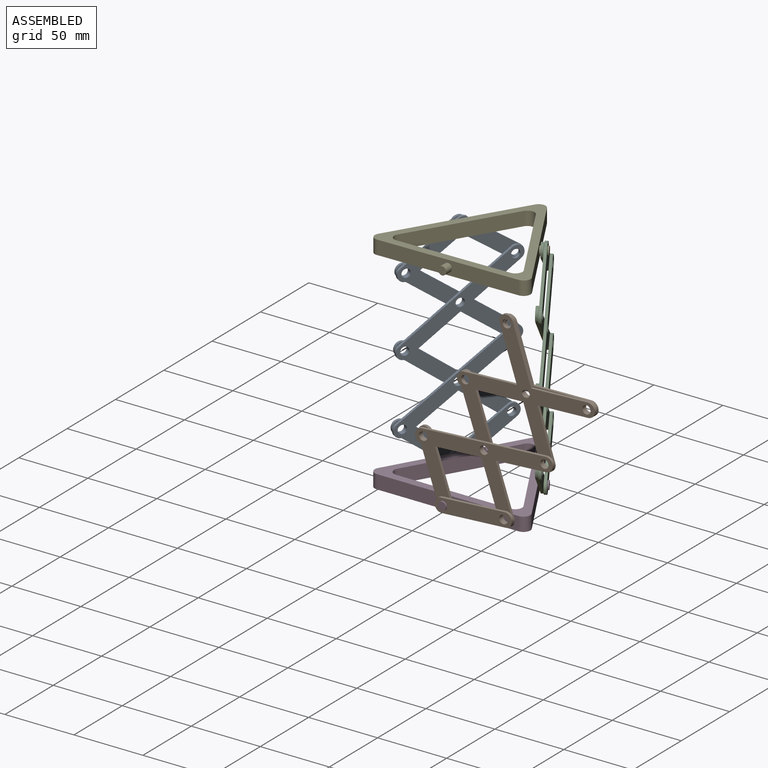
[diagram: assembled view]
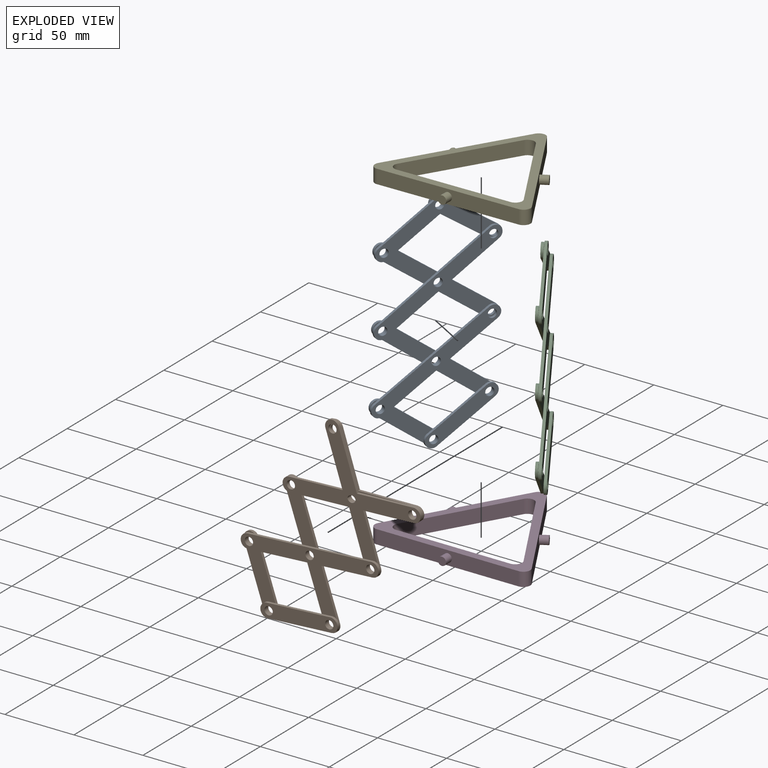
[diagram: exploded view]
GUIDED TOUR — MATED ASSEMBLY WITH SUBASSEMBLIES (Onshape document b6781e57c7d92bd61f52bf06, AutoMate assembly b6781e57c7d92bd61f52bf06_af8572f9969f21d5b0e457aa_2a93b60660b95c885320334c_default)

This assembly has 26 component occurrences arranged in 5 top-level units: 2 individual components plus 3 subassemblies (S0, S1, S2). The tour has two levels: first the top level, where each subassembly is treated as one rigid unit; then each subassembly is toured internally in its own section (nesting deeper than one subassembly level is flattened into its subassembly's section).

Components are labeled P0..P25 across the whole record; subassembly units are labeled S0..S2. A mate is a constraint between two units; its type names the relative motion it leaves free:
  REVOLUTE — leaves rotation about the listed axis free (a hinge).
Axis/direction vectors are unit vectors and 'through' points are millimeter coordinates, both in the assembly's world frame.

TOP-LEVEL MATES (between units; each subassembly's internal mates are listed in its own section)
  1. REVOLUTE "Revolute 4": P8 <-> S0, axis (0.866, -0.500, 0.000) through (-32.60, 18.82, 5.00) mm
  2. REVOLUTE "Revolute 3": P21 <-> S2, axis (-0.866, -0.500, 0.000) through (32.02, 19.82, 157.89) mm
  3. REVOLUTE "Revolute 1": P8 <-> S1, axis (0.000, 1.000, 0.000) through (0.00, -37.64, 5.00) mm
  4. REVOLUTE "Revolute 2": P8 <-> S2, axis (-0.866, -0.500, 0.000) through (32.60, 18.82, 5.00) mm

TOP-LEVEL ASSEMBLY ORDER
  1. S2 — the base component [order verified]
  2. S0 [order verified]
  3. P8 [order verified]
  4. S1 [order verified]
  5. P21 [order verified]
(S1 verified with a relaxed clearance tolerance: the source model stores slight part interference there.)
Order-tag legend:
  [order verified] — this step's position reverses a verified removal order: the component was checked to insert without passing through the ones already placed.

Of the 26 component occurrences, 24 carry the full construction recipe — the FeatureScript program that regenerates the part's solid from scratch; the rest are supplied as boundary geometry only. Each toured unit is shown spotlighted twice — assembled, then exploded with a leader line back to its socket (green = recipe-attached component, orange = geometry-only, blue = subassembly unit; the rest desaturated gray).
NOTE — this tour is split across 3 documents so each fits a 32k-token context. This is document 1: the component sections continue in the remaining 2 documents, each repeating the header above.
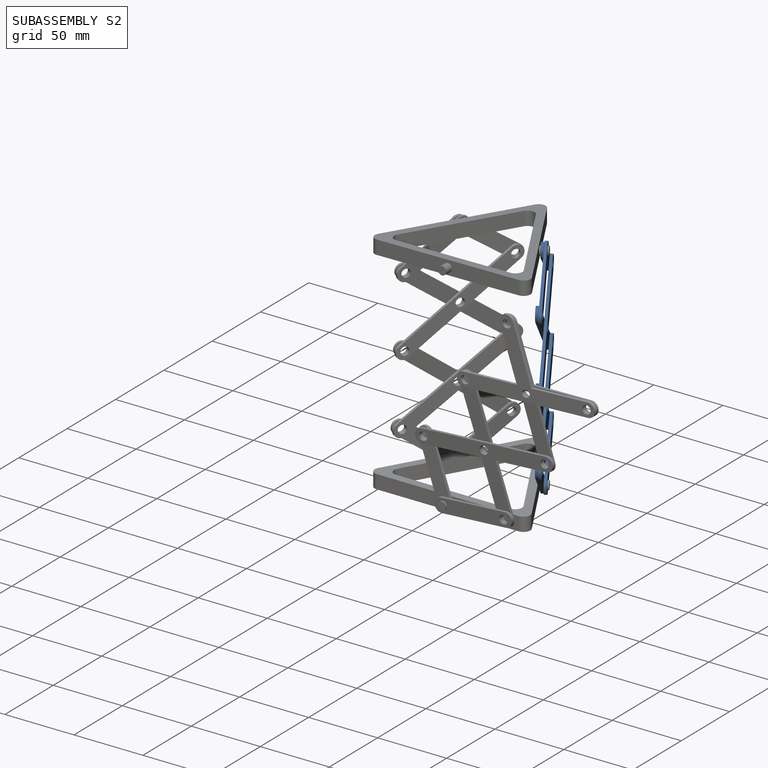
[diagram: subassembly S2 — assembled]
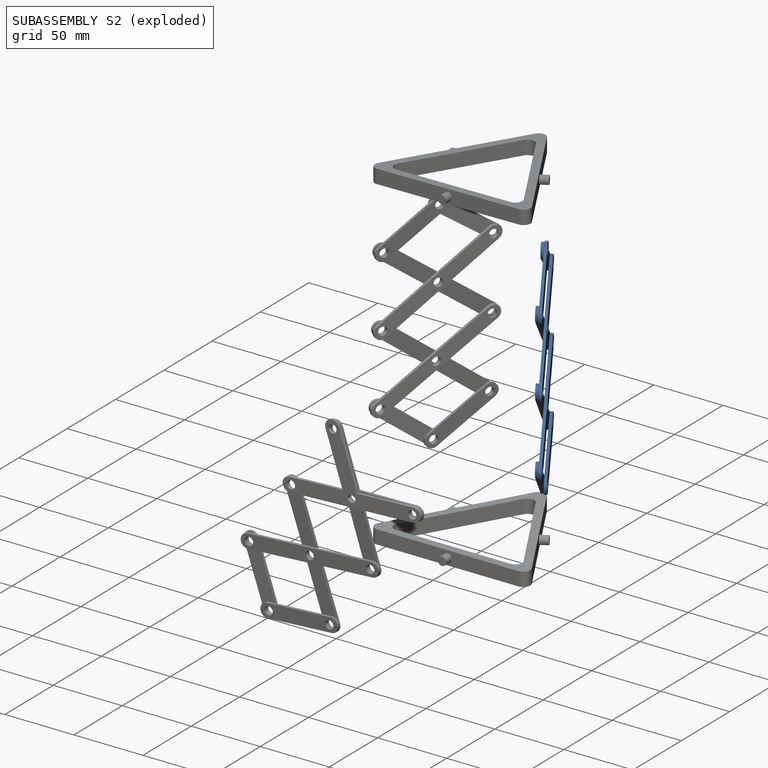
[diagram: subassembly S2 — exploded]
SUBASSEMBLY S2 — 8 components (P2, P6, P14, P17, P18, P20, P23, P25), of which 8 recipe-attached; toured below.
Held by: REVOLUTE mate "Revolute 3" to P21; REVOLUTE mate "Revolute 2" to P8.
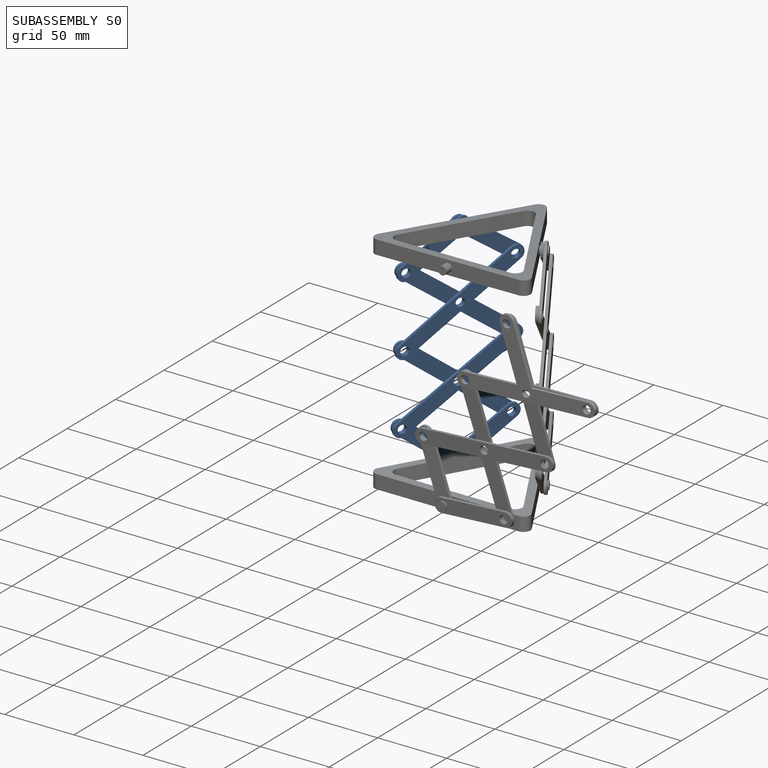
[diagram: subassembly S0 — assembled]
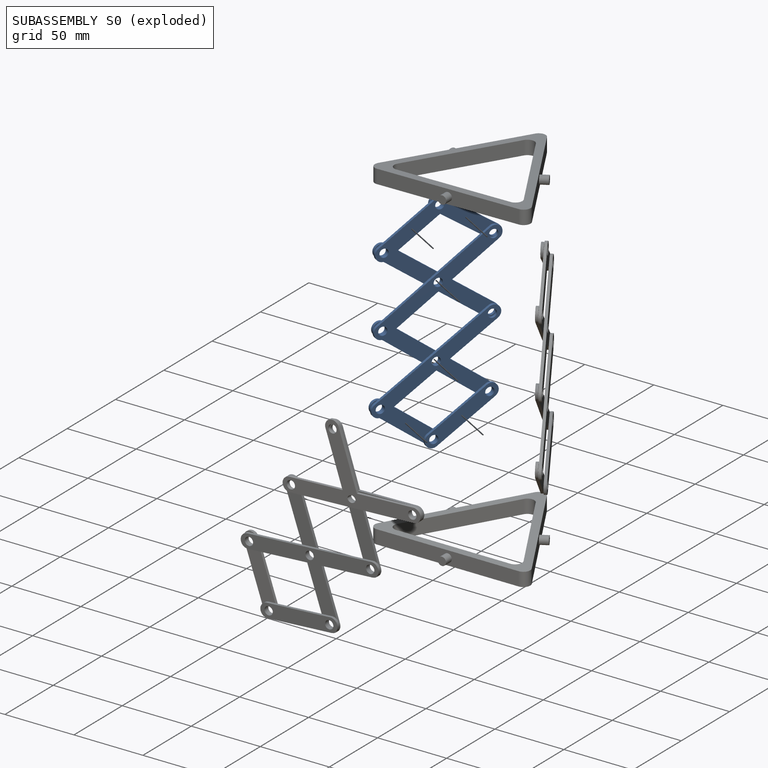
[diagram: subassembly S0 — exploded]
SUBASSEMBLY S0 — 8 components (P0, P7, P10, P12, P13, P15, P19, P24), of which 8 recipe-attached; toured below.
Held by: REVOLUTE mate "Revolute 4" to P8.
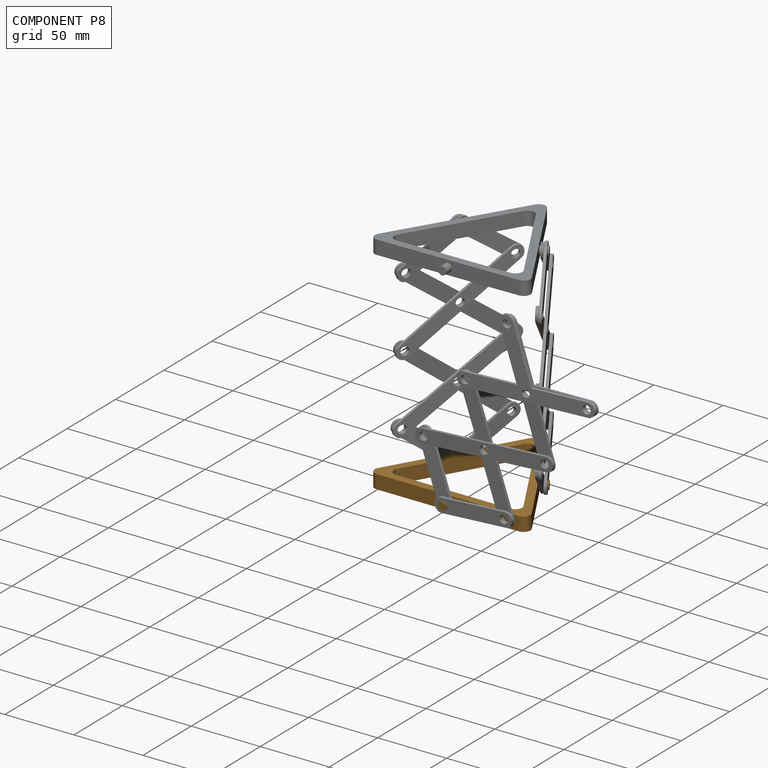
[diagram: component P8 — assembled]
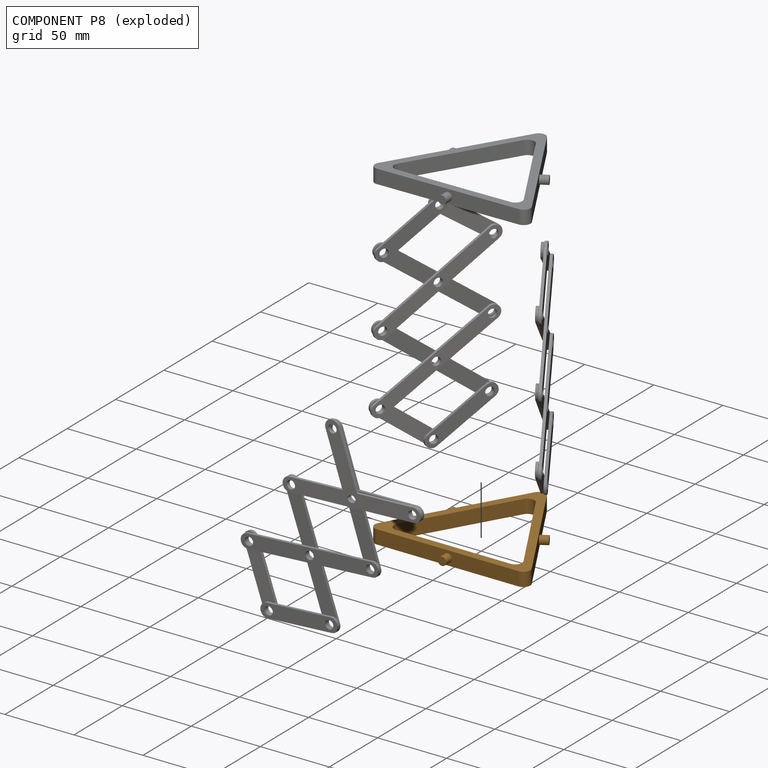
[diagram: component P8 — exploded]
COMPONENT P8 — geometry summary (no construction recipe available for this part):
  bounding box: 112.7 x 104.9 x 10.0 mm
  B-rep topology: 1 solid, 20 faces, 90 edges
  volume: 19561 mm^3 (17% of its bounding box)
  symmetry: 2-fold rotationally symmetric about the y axis; mirror-symmetric across its x mid-plane, z mid-plane
Held by: REVOLUTE mate "Revolute 4" to P0; REVOLUTE mate "Revolute 1" to P1; REVOLUTE mate "Revolute 2" to P2.
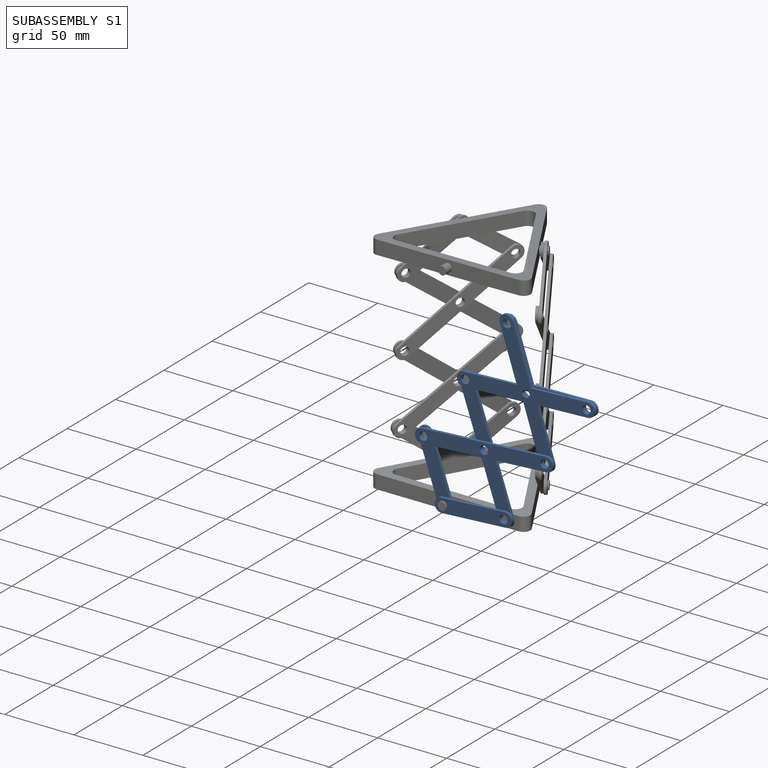
[diagram: subassembly S1 — assembled]
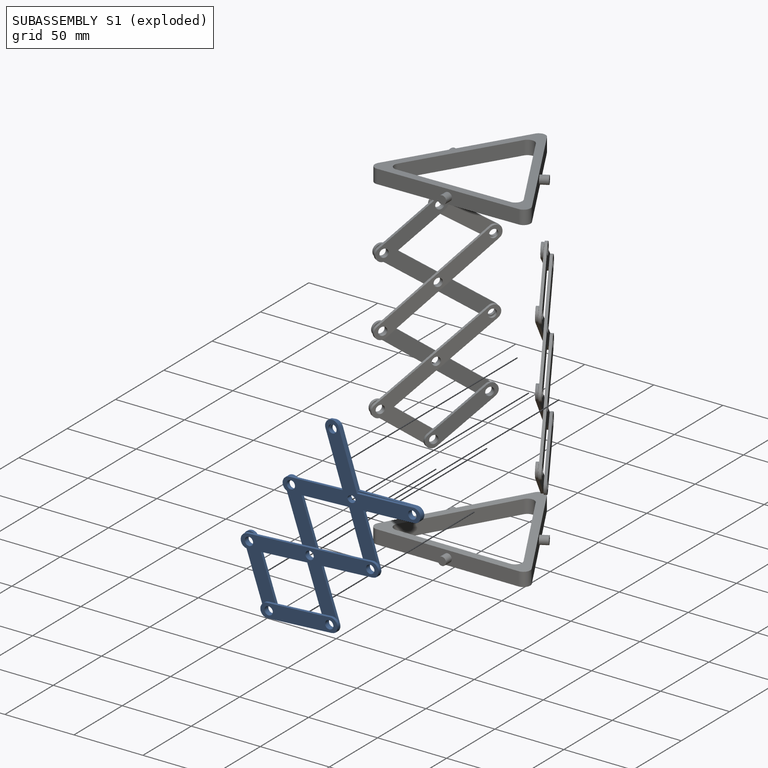
[diagram: subassembly S1 — exploded]
SUBASSEMBLY S1 — 8 components (P1, P3, P4, P5, P9, P11, P16, P22), of which 8 recipe-attached; toured below.
Held by: REVOLUTE mate "Revolute 1" to P8.
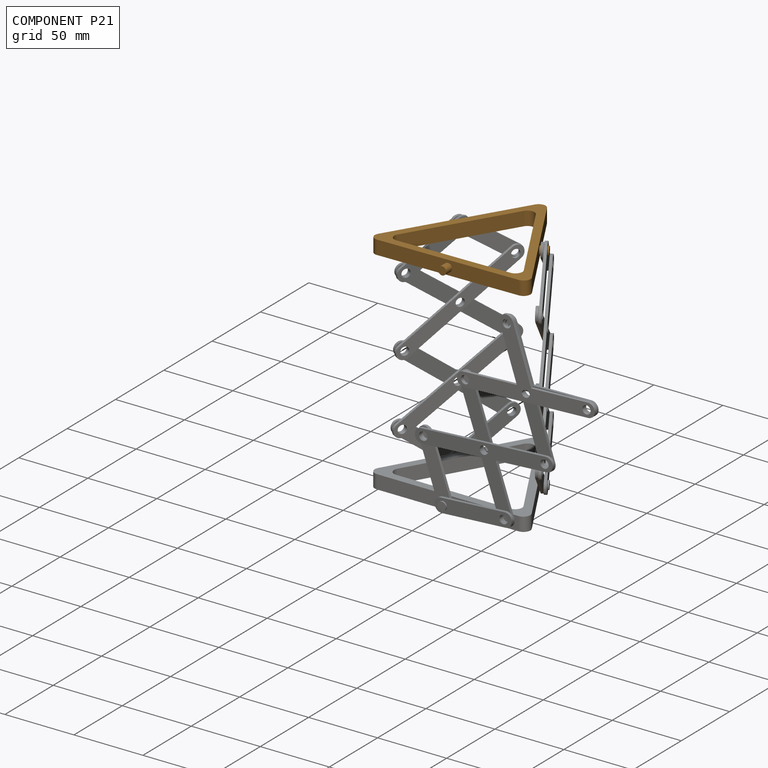
[diagram: component P21 — assembled]
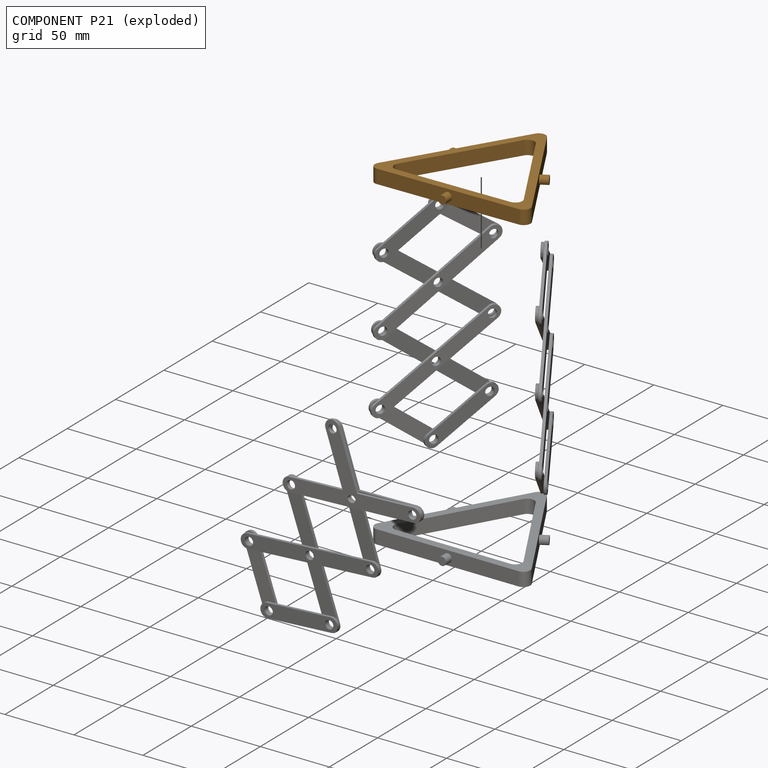
[diagram: component P21 — exploded]
COMPONENT P21 — geometry summary (no construction recipe available for this part):
  bounding box: 112.7 x 104.9 x 10.0 mm
  B-rep topology: 1 solid, 20 faces, 90 edges
  volume: 19561 mm^3 (17% of its bounding box)
  symmetry: 2-fold rotationally symmetric about the y axis; mirror-symmetric across its x mid-plane, z mid-plane
Held by: REVOLUTE mate "Revolute 3" to P2.
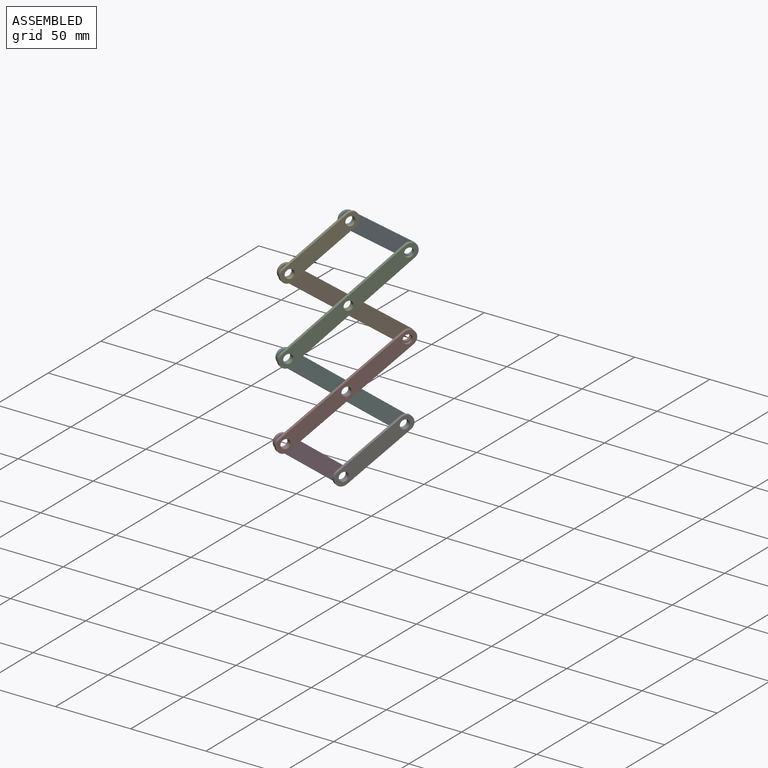
[diagram: subassembly S0 — assembled view]
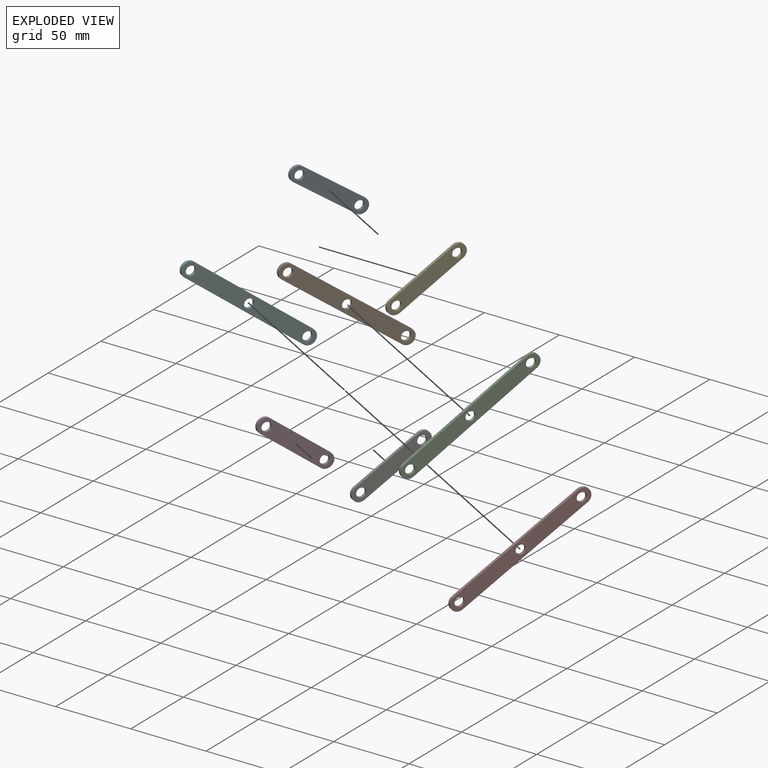
[diagram: subassembly S0 — exploded view]
SUBASSEMBLY S0 TOUR — 8 components, shown here in isolation at its own camera.

INTERNAL MATES
  1. REVOLUTE "Revolute 1": P24 <-> P15, axis (-0.866, 0.500, 0.000) through (-31.77, 20.25, 55.87) mm
  2. REVOLUTE "Revolute 3": P10 <-> P15, axis (-0.866, 0.500, 0.000) through (-49.30, -10.10, 82.47) mm
  3. REVOLUTE "Revolute 8": P13 <-> P7, axis (-0.866, 0.500, 0.000) through (-48.87, -9.37, 133.35) mm
  4. REVOLUTE "Revolute 10": P13 <-> P0, axis (0.866, -0.500, 0.000) through (-30.62, 22.25, 157.90) mm
  5. REVOLUTE "Revolute 5": P19 <-> P15, axis (-0.866, 0.500, 0.000) through (-14.25, 50.61, 29.27) mm
  6. REVOLUTE "Revolute 9": P10 <-> P0, axis (-0.866, 0.500, 0.000) through (-12.57, 53.51, 132.73) mm
  7. REVOLUTE "Revolute 7": P24 <-> P12, axis (-0.866, 0.500, 0.000) through (-50.12, -11.53, 31.60) mm
  8. REVOLUTE "Revolute 6": P19 <-> P12, axis (-0.866, 0.500, 0.000) through (-32.60, 18.82, 5.00) mm
  9. REVOLUTE "Revolute 4": P10 <-> P7, axis (-0.866, 0.500, 0.000) through (-31.14, 21.35, 107.32) mm
  10. REVOLUTE "Revolute 2": P24 <-> P7, axis (-0.866, 0.500, 0.000) through (-13.00, 52.76, 80.69) mm
  11. REVOLUTE "Revolute 1": P24 <-> P15, axis (-0.866, 0.500, 0.000) through (-31.77, 20.25, 55.87) mm
  12. REVOLUTE "Revolute 10": P13 <-> P0, axis (0.866, -0.500, 0.000) through (-30.62, 22.25, 157.90) mm
  13. REVOLUTE "Revolute 4": P10 <-> P7, axis (-0.866, 0.500, 0.000) through (-31.14, 21.35, 107.32) mm
  14. REVOLUTE "Revolute 5": P19 <-> P15, axis (-0.866, 0.500, 0.000) through (-14.25, 50.61, 29.27) mm
  15. REVOLUTE "Revolute 6": P19 <-> P12, axis (-0.866, 0.500, 0.000) through (-32.60, 18.82, 5.00) mm
  16. REVOLUTE "Revolute 2": P24 <-> P7, axis (-0.866, 0.500, 0.000) through (-13.00, 52.76, 80.69) mm
  17. REVOLUTE "Revolute 3": P10 <-> P15, axis (-0.866, 0.500, 0.000) through (-49.30, -10.10, 82.47) mm
  18. REVOLUTE "Revolute 9": P10 <-> P0, axis (-0.866, 0.500, 0.000) through (-12.57, 53.51, 132.73) mm
  19. REVOLUTE "Revolute 8": P13 <-> P7, axis (-0.866, 0.500, 0.000) through (-48.87, -9.37, 133.35) mm
  20. REVOLUTE "Revolute 7": P24 <-> P12, axis (-0.866, 0.500, 0.000) through (-50.12, -11.53, 31.60) mm

ASSEMBLY ORDER (within the subassembly)
  1. P7 — the base component [order verified]
  2. P0 [order verified]
  3. P12 [order verified]
  4. P15 [order verified]
  5. P19 [order verified]
  6. P13 [order verified]
  7. P10 [order verified]
  8. P24 [order verified]
Order-tag legend:
  [order verified] — this step's position reverses a verified removal order: the component was checked to insert without passing through the ones already placed.
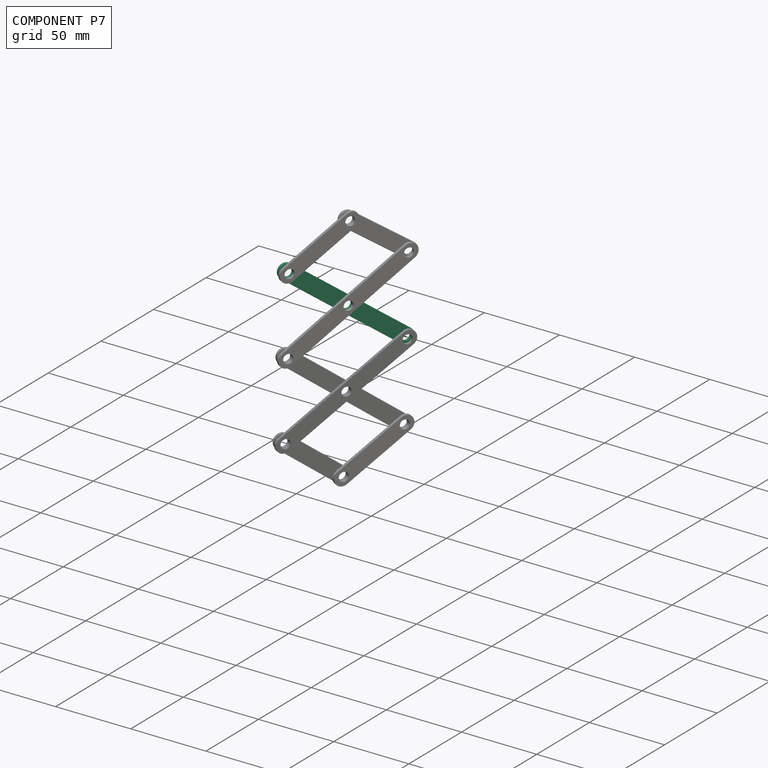
[diagram: component P7 — assembled]
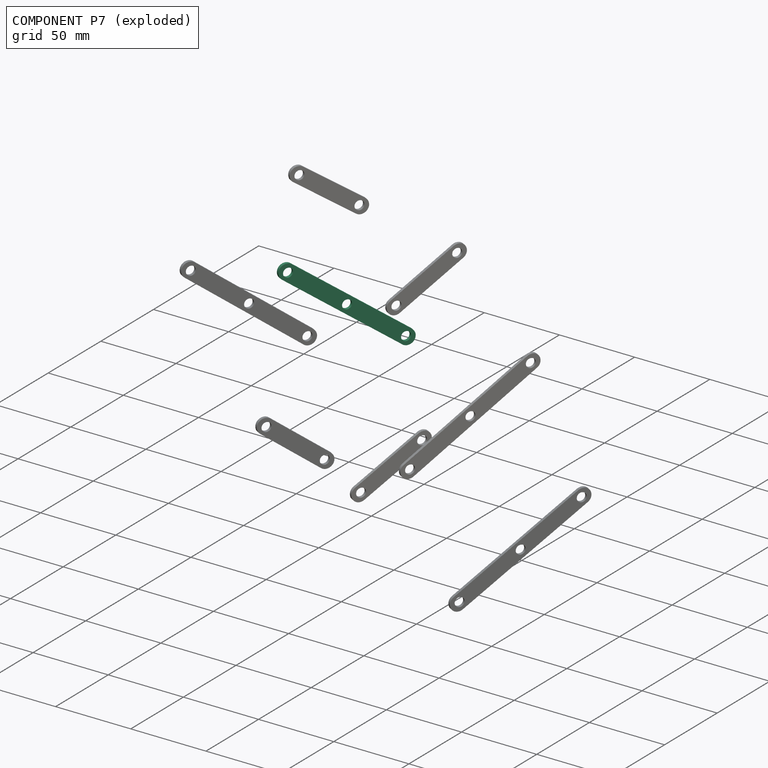
[diagram: component P7 — exploded]
COMPONENT P7 — recipe-attached (CADFS 00656249, mesh-verified: the recipe's output STEP matches this component's geometry to below the mesh-comparison resolution (tessellation chordal tolerance ~0.151 mm)).
Held by: REVOLUTE mate "Revolute 8" to P13; REVOLUTE mate "Revolute 4" to P10; REVOLUTE mate "Revolute 2" to P24; REVOLUTE mate "Revolute 4" to P10; REVOLUTE mate "Revolute 2" to P24; REVOLUTE mate "Revolute 8" to P13.
Construction recipe (FeatureScript — the CAD program that rebuilds this solid; sketch coordinates are in the units given by the * unit suffixes, e.g. mm):

FeatureScript 1511;
import(path : "onshape/std/geometry.fs", version : "1511.0");
import(path : "onshape/std/common.fs", version : "1511.0");
const mm = millimeter;
const VERTEX = EntityType.VERTEX;
const EDGE = EntityType.EDGE;
const FACE = EntityType.FACE;
const BODY = EntityType.BODY;
function v(x, y){return vector(x, y);}
function OD(order){return orderDisambiguation(order);}
function OSD(set){return originalSetDisambiguation(set);}
function TD(topology){return topologyDisambiguation(topology);}
function TDD(query){return trueDependencyDisambiguation(query);}
function sQuery(a, b, c) {return sketchEntityQuery(a, b, c);}

annotation { "Feature Type Name" : "Feature", "Feature Type Description" : "" }
export const myFeature = defineFeature(function(context is Context, id is Id, definition is map)
    precondition{}
    {
        {
            var Q0;
            Q0=qCreatedBy(makeId("Front.planeOp"),FACE);
            var sketch = newSketch(context, id + "F0", { "sketchPlane" : qUnion([Q0])});
            skLineSegment(sketch, "E0.bottom", {"start": v(-50, 5) * mm, "end": v(50, 5) * mm});
            skLineSegment(sketch, "E0.top", {"start": v(-50, -5) * mm, "end": v(50, -5) * mm});
            skLineSegment(sketch, "E0.left", {"start": v(-50, 5) * mm, "end": v(-50, -5) * mm});
            skLineSegment(sketch, "E0.right", {"start": v(50, 5) * mm, "end": v(50, -5) * mm});
            skCircle(sketch, "E1", {"center": v(0, 0) * mm, "radius": 3 * mm});
            skCircle(sketch, "E2", {"center": v(-44, 0) * mm, "radius": 3 * mm});
            skPoint(sketch, "E2.centerSnap0", {"position": v(-50, 0) * mm});
            skCircle(sketch, "E3", {"center": v(44, 0) * mm, "radius": 3 * mm});
            skSolve(sketch);
        }
        {
            var Q0;
            Q0 = qSketchRegion(id + "F0", true);
            extrude(context, id + "F1", {"entities" : qUnion([Q0]), "depth" : 2 * mm, "offsetDistance" : 25 * mm});
        }
        {
            var Q0;
            Q0=makeQuery(id+"F1.opExtrude","SWEPT_EDGE",EDGE,{"disambiguationData":[OSD([sQuery(id+"F0.wireOp",EDGE,"E0.bottom"),sQuery(id+"F0.wireOp",EDGE,"E0.left")])]});
            var Q1;
            Q1=makeQuery(id+"F1.opExtrude","SWEPT_EDGE",EDGE,{"disambiguationData":[OSD([sQuery(id+"F0.wireOp",EDGE,"E0.top"),sQuery(id+"F0.wireOp",EDGE,"E0.left")])]});
            var Q2;
            Q2=makeQuery(id+"F1.opExtrude","SWEPT_EDGE",EDGE,{"disambiguationData":[OSD([sQuery(id+"F0.wireOp",EDGE,"E0.bottom"),sQuery(id+"F0.wireOp",EDGE,"E0.right")])]});
            var Q3;
            Q3=makeQuery(id+"F1.opExtrude","SWEPT_EDGE",EDGE,{"disambiguationData":[OSD([sQuery(id+"F0.wireOp",EDGE,"E0.top"),sQuery(id+"F0.wireOp",EDGE,"E0.right")])]});
            fillet(context, id + "F2", {"entities" : qUnion([Q0, Q1, Q2, Q3]), "radius" : 5 * mm, "tangentPropagation" : true, "allowEdgeOverflow" : false});
        }
    });
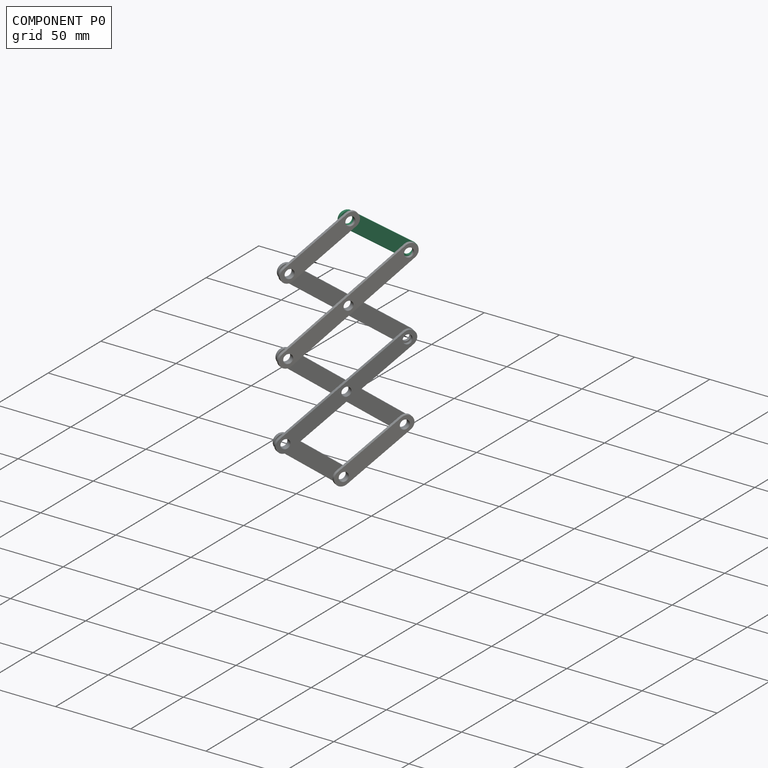
[diagram: component P0 — assembled]
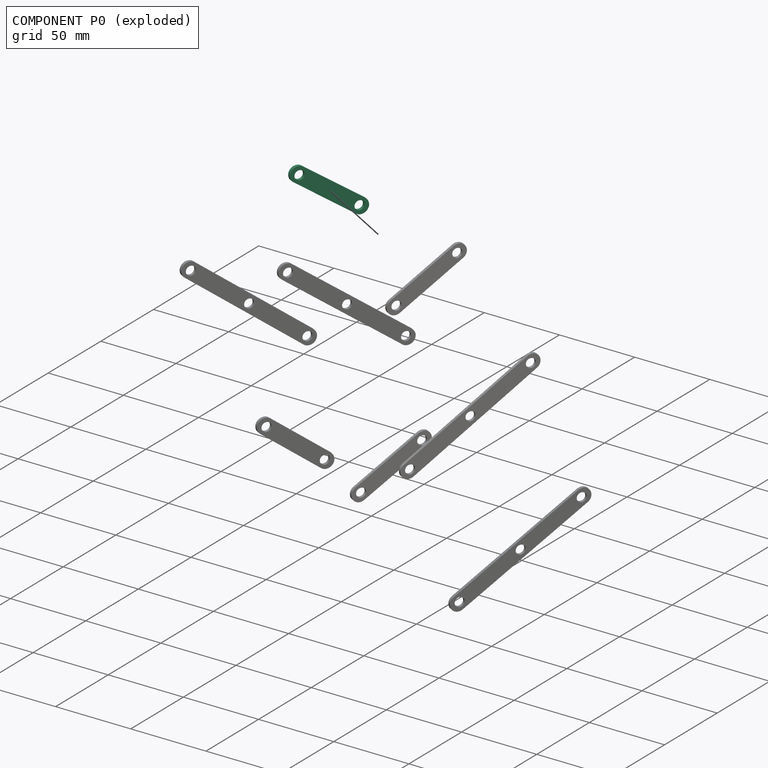
[diagram: component P0 — exploded]
COMPONENT P0 — recipe-attached (CADFS 00656250, mesh-verified: the recipe's output STEP matches this component's geometry to below the mesh-comparison resolution (tessellation chordal tolerance ~0.0853 mm)).
Held by: REVOLUTE mate "Revolute 10" to P13; REVOLUTE mate "Revolute 9" to P10; REVOLUTE mate "Revolute 10" to P13; REVOLUTE mate "Revolute 9" to P10.
Construction recipe (FeatureScript — the CAD program that rebuilds this solid; sketch coordinates are in the units given by the * unit suffixes, e.g. mm):

FeatureScript 1511;
import(path : "onshape/std/geometry.fs", version : "1511.0");
import(path : "onshape/std/common.fs", version : "1511.0");
const mm = millimeter;
const VERTEX = EntityType.VERTEX;
const EDGE = EntityType.EDGE;
const FACE = EntityType.FACE;
const BODY = EntityType.BODY;
function v(x, y){return vector(x, y);}
function OD(order){return orderDisambiguation(order);}
function OSD(set){return originalSetDisambiguation(set);}
function TD(topology){return topologyDisambiguation(topology);}
function TDD(query){return trueDependencyDisambiguation(query);}
function sQuery(a, b, c) {return sketchEntityQuery(a, b, c);}

annotation { "Feature Type Name" : "Feature", "Feature Type Description" : "" }
export const myFeature = defineFeature(function(context is Context, id is Id, definition is map)
    precondition{}
    {
        {
            var Q0;
            Q0=qCreatedBy(makeId("Front.planeOp"),FACE);
            var sketch = newSketch(context, id + "F0", { "sketchPlane" : qUnion([Q0])});
            skLineSegment(sketch, "E0.bottom", {"start": v(-49.84, 5.24) * mm, "end": v(6.16, 5.24) * mm});
            skLineSegment(sketch, "E0.top", {"start": v(-49.84, -4.76) * mm, "end": v(6.16, -4.76) * mm});
            skLineSegment(sketch, "E0.left", {"start": v(-49.84, 5.24) * mm, "end": v(-49.84, -4.76) * mm});
            skLineSegment(sketch, "E0.right", {"start": v(6.16, 5.24) * mm, "end": v(6.16, -4.76) * mm});
            skCircle(sketch, "E1", {"center": v(0.16, 0.24) * mm, "radius": 3 * mm});
            skCircle(sketch, "E2", {"center": v(-43.84, 0.24) * mm, "radius": 3 * mm});
            skPoint(sketch, "E2.centerSnap0", {"position": v(-49.84, 0.24) * mm});
            skSolve(sketch);
        }
        {
            var Q0;
            Q0 = qSketchRegion(id + "F0", true);
            extrude(context, id + "F1", {"entities" : qUnion([Q0]), "depth" : 2 * mm, "offsetDistance" : 25 * mm});
        }
        {
            var Q0;
            Q0=makeQuery(id+"F1.opExtrude","SWEPT_EDGE",EDGE,{"disambiguationData":[OSD([sQuery(id+"F0.wireOp",EDGE,"E0.bottom"),sQuery(id+"F0.wireOp",EDGE,"E0.left")])]});
            var Q1;
            Q1=makeQuery(id+"F1.opExtrude","SWEPT_EDGE",EDGE,{"disambiguationData":[OSD([sQuery(id+"F0.wireOp",EDGE,"E0.top"),sQuery(id+"F0.wireOp",EDGE,"E0.left")])]});
            var Q2;
            Q2=makeQuery(id+"F1.opExtrude","SWEPT_EDGE",EDGE,{"disambiguationData":[OSD([sQuery(id+"F0.wireOp",EDGE,"E0.bottom"),sQuery(id+"F0.wireOp",EDGE,"E0.right")])]});
            var Q3;
            Q3=makeQuery(id+"F1.opExtrude","SWEPT_EDGE",EDGE,{"disambiguationData":[OSD([sQuery(id+"F0.wireOp",EDGE,"E0.top"),sQuery(id+"F0.wireOp",EDGE,"E0.right")])]});
            fillet(context, id + "F2", {"entities" : qUnion([Q0, Q1, Q2, Q3]), "radius" : 5 * mm, "tangentPropagation" : true, "allowEdgeOverflow" : false});
        }
    });
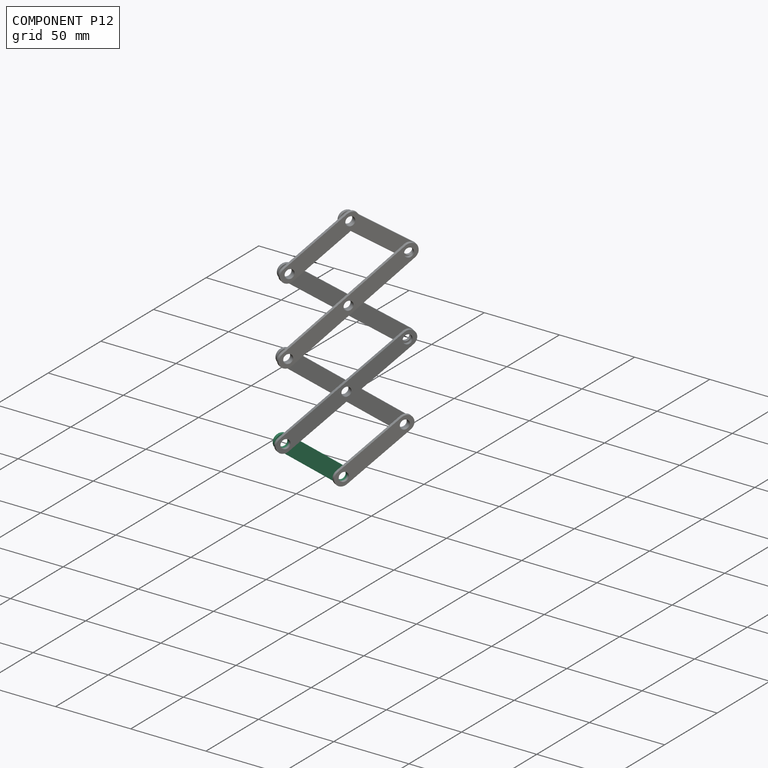
[diagram: component P12 — assembled]
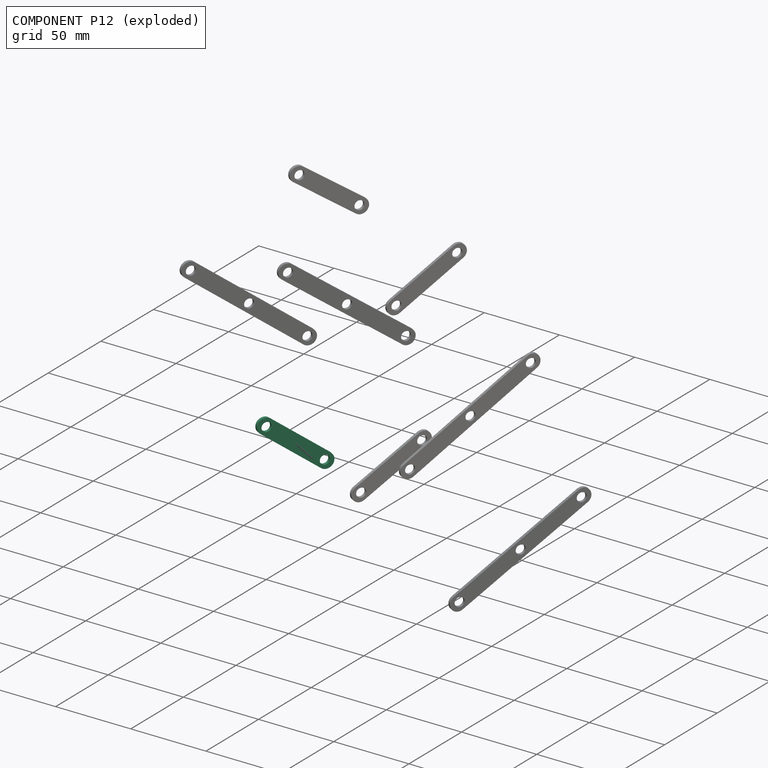
[diagram: component P12 — exploded]
COMPONENT P12 — same part as P0 (CADFS 00656250); its construction recipe is shown at P0.
Held by: REVOLUTE mate "Revolute 7" to P24; REVOLUTE mate "Revolute 6" to P19; REVOLUTE mate "Revolute 6" to P19; REVOLUTE mate "Revolute 7" to P24.
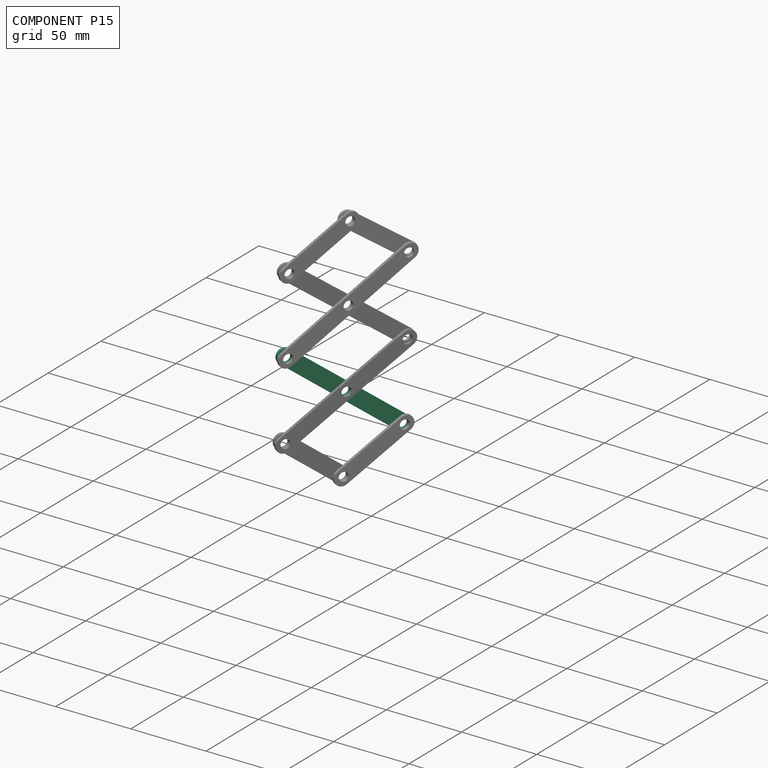
[diagram: component P15 — assembled]
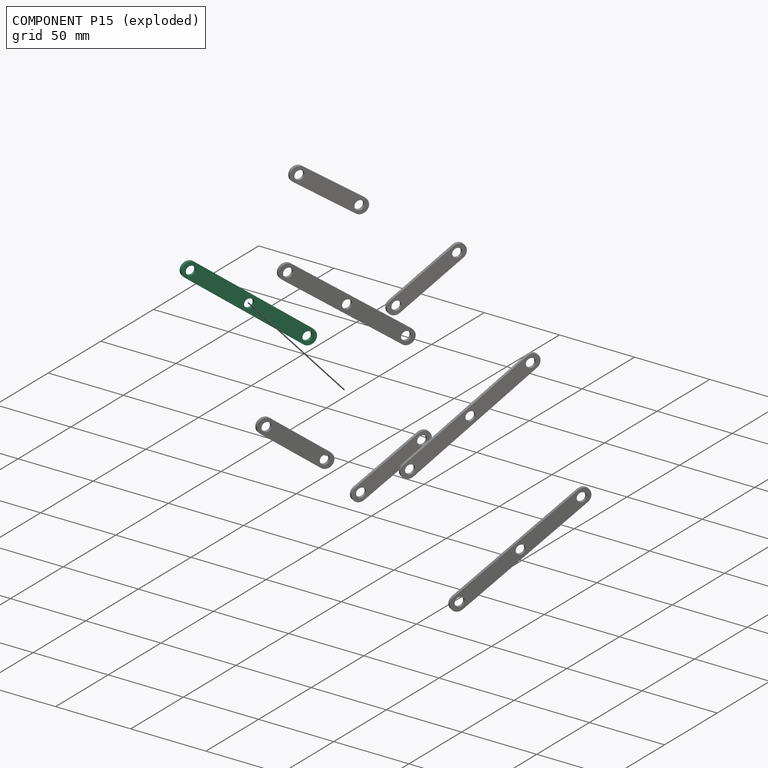
[diagram: component P15 — exploded]
COMPONENT P15 — recipe-attached (CADFS 00656249, mesh-verified: the recipe's output STEP matches this component's geometry to below the mesh-comparison resolution (tessellation chordal tolerance ~0.151 mm)).
Held by: REVOLUTE mate "Revolute 1" to P24; REVOLUTE mate "Revolute 3" to P10; REVOLUTE mate "Revolute 5" to P19; REVOLUTE mate "Revolute 1" to P24; REVOLUTE mate "Revolute 5" to P19; REVOLUTE mate "Revolute 3" to P10.
Construction recipe (FeatureScript — the CAD program that rebuilds this solid; sketch coordinates are in the units given by the * unit suffixes, e.g. mm):

FeatureScript 1511;
import(path : "onshape/std/geometry.fs", version : "1511.0");
import(path : "onshape/std/common.fs", version : "1511.0");
const mm = millimeter;
const VERTEX = EntityType.VERTEX;
const EDGE = EntityType.EDGE;
const FACE = EntityType.FACE;
const BODY = EntityType.BODY;
function v(x, y){return vector(x, y);}
function OD(order){return orderDisambiguation(order);}
function OSD(set){return originalSetDisambiguation(set);}
function TD(topology){return topologyDisambiguation(topology);}
function TDD(query){return trueDependencyDisambiguation(query);}
function sQuery(a, b, c) {return sketchEntityQuery(a, b, c);}

annotation { "Feature Type Name" : "Feature", "Feature Type Description" : "" }
export const myFeature = defineFeature(function(context is Context, id is Id, definition is map)
    precondition{}
    {
        {
            var Q0;
            Q0=qCreatedBy(makeId("Front.planeOp"),FACE);
            var sketch = newSketch(context, id + "F0", { "sketchPlane" : qUnion([Q0])});
            skLineSegment(sketch, "E0.bottom", {"start": v(-50, 5) * mm, "end": v(50, 5) * mm});
            skLineSegment(sketch, "E0.top", {"start": v(-50, -5) * mm, "end": v(50, -5) * mm});
            skLineSegment(sketch, "E0.left", {"start": v(-50, 5) * mm, "end": v(-50, -5) * mm});
            skLineSegment(sketch, "E0.right", {"start": v(50, 5) * mm, "end": v(50, -5) * mm});
            skCircle(sketch, "E1", {"center": v(0, 0) * mm, "radius": 3 * mm});
            skCircle(sketch, "E2", {"center": v(-44, 0) * mm, "radius": 3 * mm});
            skPoint(sketch, "E2.centerSnap0", {"position": v(-50, 0) * mm});
            skCircle(sketch, "E3", {"center": v(44, 0) * mm, "radius": 3 * mm});
            skSolve(sketch);
        }
        {
            var Q0;
            Q0 = qSketchRegion(id + "F0", true);
            extrude(context, id + "F1", {"entities" : qUnion([Q0]), "depth" : 2 * mm, "offsetDistance" : 25 * mm});
        }
        {
            var Q0;
            Q0=makeQuery(id+"F1.opExtrude","SWEPT_EDGE",EDGE,{"disambiguationData":[OSD([sQuery(id+"F0.wireOp",EDGE,"E0.bottom"),sQuery(id+"F0.wireOp",EDGE,"E0.left")])]});
            var Q1;
            Q1=makeQuery(id+"F1.opExtrude","SWEPT_EDGE",EDGE,{"disambiguationData":[OSD([sQuery(id+"F0.wireOp",EDGE,"E0.top"),sQuery(id+"F0.wireOp",EDGE,"E0.left")])]});
            var Q2;
            Q2=makeQuery(id+"F1.opExtrude","SWEPT_EDGE",EDGE,{"disambiguationData":[OSD([sQuery(id+"F0.wireOp",EDGE,"E0.bottom"),sQuery(id+"F0.wireOp",EDGE,"E0.right")])]});
            var Q3;
            Q3=makeQuery(id+"F1.opExtrude","SWEPT_EDGE",EDGE,{"disambiguationData":[OSD([sQuery(id+"F0.wireOp",EDGE,"E0.top"),sQuery(id+"F0.wireOp",EDGE,"E0.right")])]});
            fillet(context, id + "F2", {"entities" : qUnion([Q0, Q1, Q2, Q3]), "radius" : 5 * mm, "tangentPropagation" : true, "allowEdgeOverflow" : false});
        }
    });
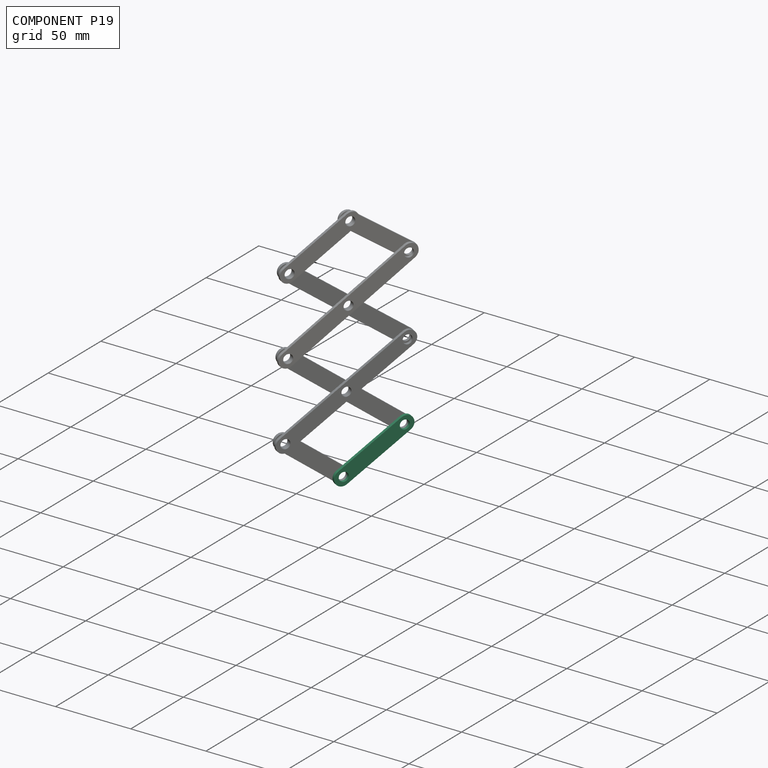
[diagram: component P19 — assembled]
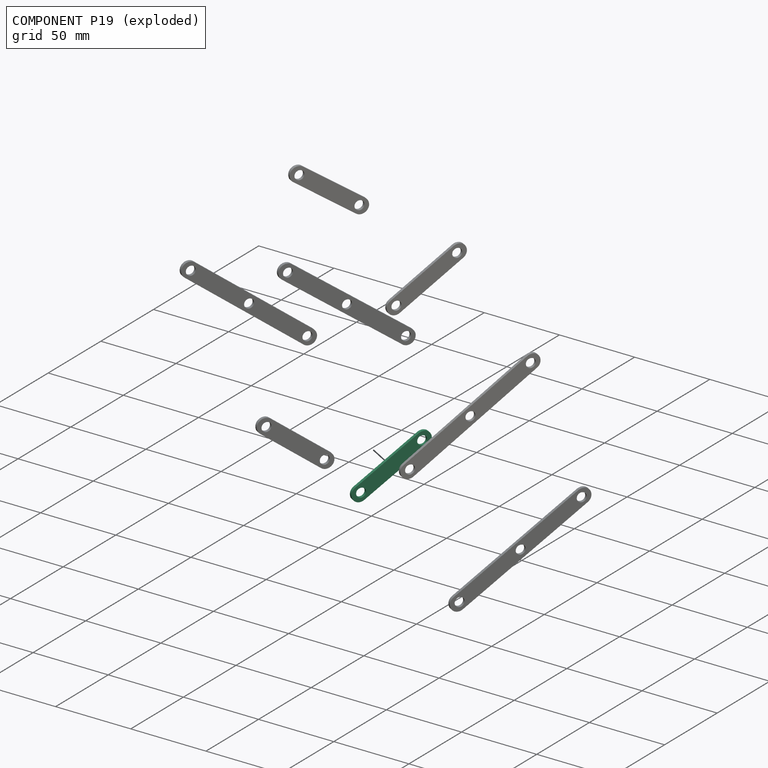
[diagram: component P19 — exploded]
COMPONENT P19 — same part as P0 (CADFS 00656250); its construction recipe is shown at P0.
Held by: REVOLUTE mate "Revolute 5" to P15; REVOLUTE mate "Revolute 6" to P12; REVOLUTE mate "Revolute 5" to P15; REVOLUTE mate "Revolute 6" to P12.
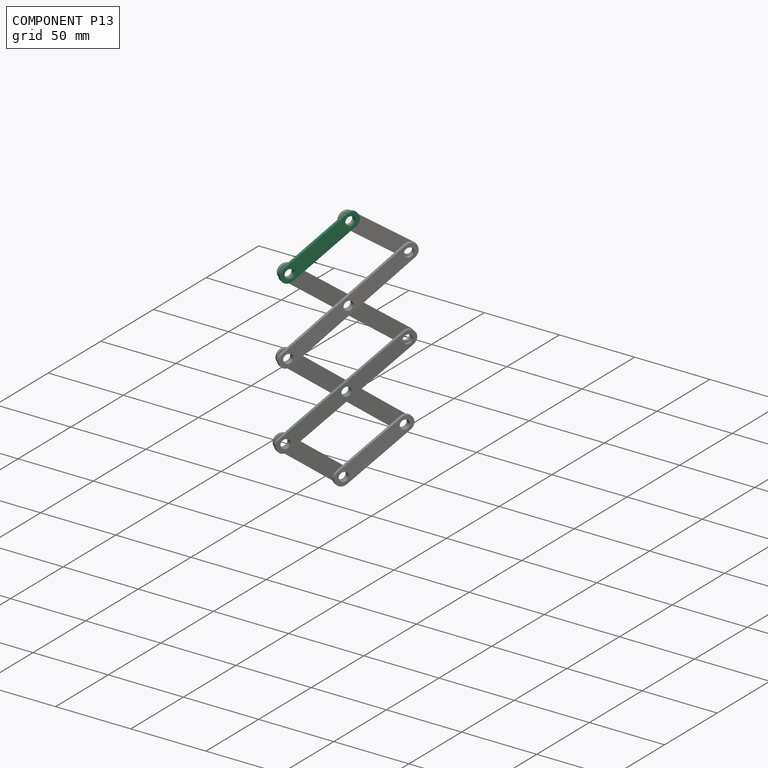
[diagram: component P13 — assembled]
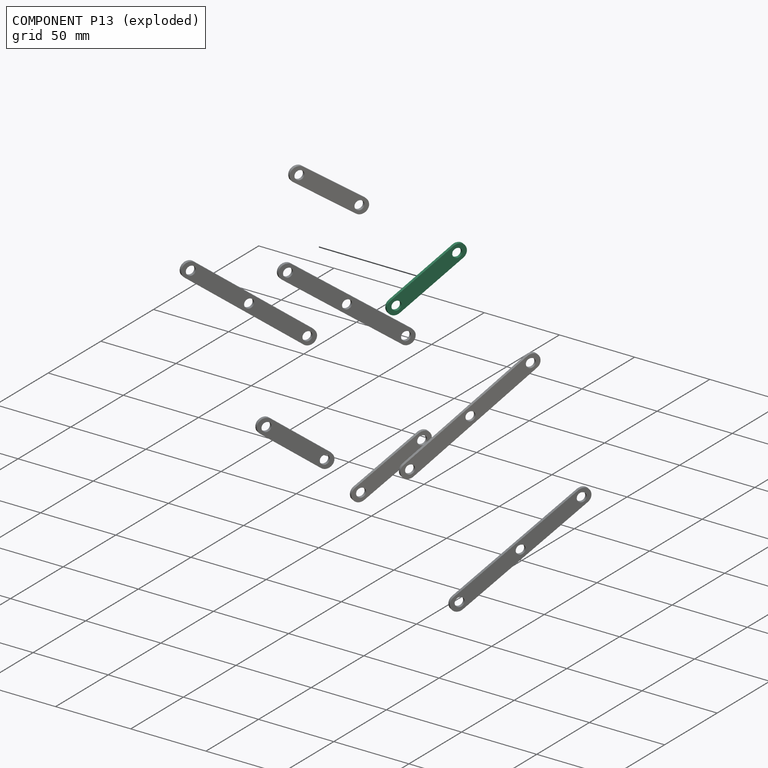
[diagram: component P13 — exploded]
COMPONENT P13 — same part as P0 (CADFS 00656250); its construction recipe is shown at P0.
Held by: REVOLUTE mate "Revolute 8" to P7; REVOLUTE mate "Revolute 10" to P0; REVOLUTE mate "Revolute 10" to P0; REVOLUTE mate "Revolute 8" to P7.
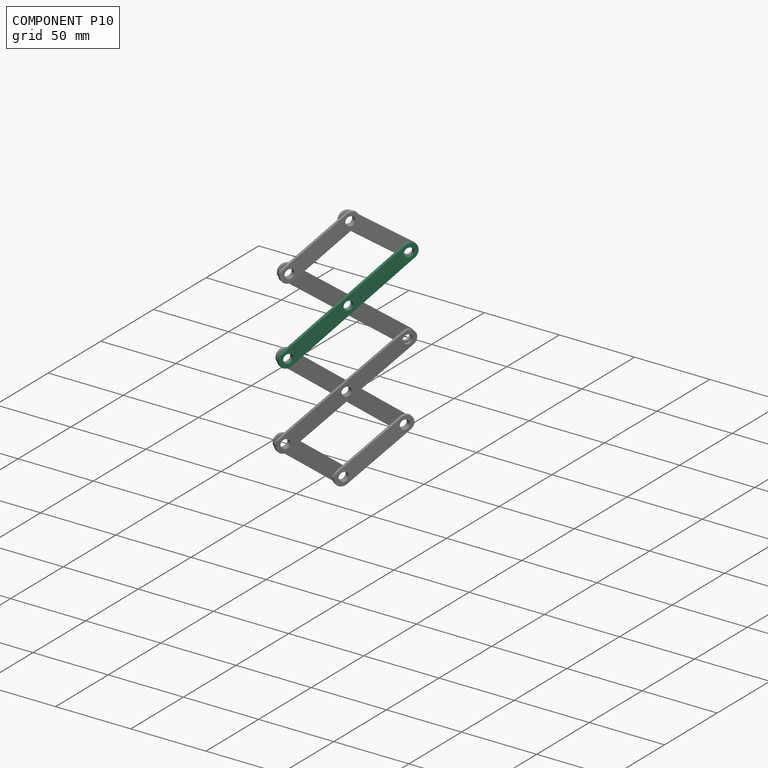
[diagram: component P10 — assembled]
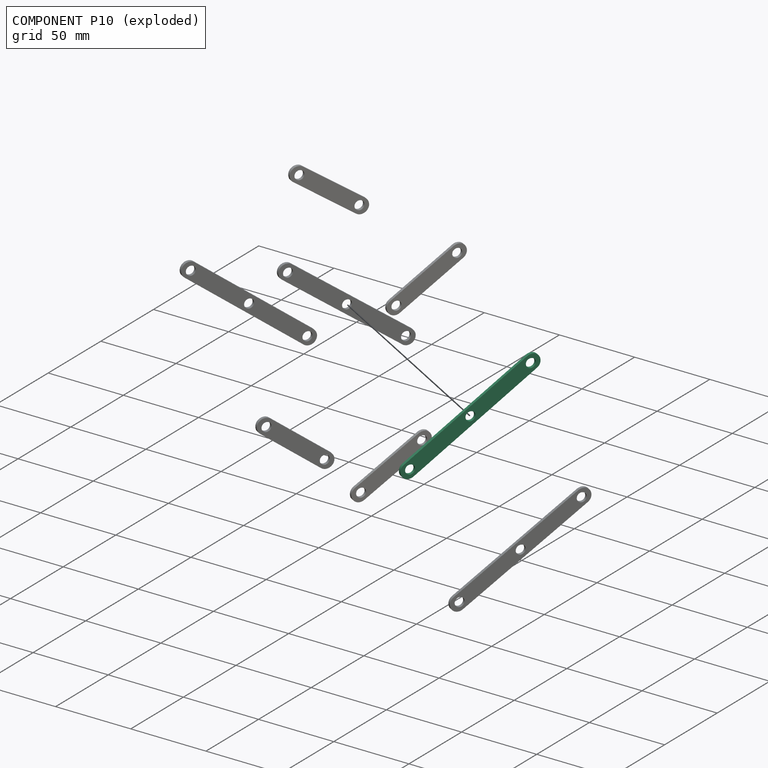
[diagram: component P10 — exploded]
COMPONENT P10 — recipe-attached (CADFS 00656249, mesh-verified: the recipe's output STEP matches this component's geometry to below the mesh-comparison resolution (tessellation chordal tolerance ~0.151 mm)).
Held by: REVOLUTE mate "Revolute 3" to P15; REVOLUTE mate "Revolute 9" to P0; REVOLUTE mate "Revolute 4" to P7; REVOLUTE mate "Revolute 4" to P7; REVOLUTE mate "Revolute 3" to P15; REVOLUTE mate "Revolute 9" to P0.
Construction recipe (FeatureScript — the CAD program that rebuilds this solid; sketch coordinates are in the units given by the * unit suffixes, e.g. mm):

FeatureScript 1511;
import(path : "onshape/std/geometry.fs", version : "1511.0");
import(path : "onshape/std/common.fs", version : "1511.0");
const mm = millimeter;
const VERTEX = EntityType.VERTEX;
const EDGE = EntityType.EDGE;
const FACE = EntityType.FACE;
const BODY = EntityType.BODY;
function v(x, y){return vector(x, y);}
function OD(order){return orderDisambiguation(order);}
function OSD(set){return originalSetDisambiguation(set);}
function TD(topology){return topologyDisambiguation(topology);}
function TDD(query){return trueDependencyDisambiguation(query);}
function sQuery(a, b, c) {return sketchEntityQuery(a, b, c);}

annotation { "Feature Type Name" : "Feature", "Feature Type Description" : "" }
export const myFeature = defineFeature(function(context is Context, id is Id, definition is map)
    precondition{}
    {
        {
            var Q0;
            Q0=qCreatedBy(makeId("Front.planeOp"),FACE);
            var sketch = newSketch(context, id + "F0", { "sketchPlane" : qUnion([Q0])});
            skLineSegment(sketch, "E0.bottom", {"start": v(-50, 5) * mm, "end": v(50, 5) * mm});
            skLineSegment(sketch, "E0.top", {"start": v(-50, -5) * mm, "end": v(50, -5) * mm});
            skLineSegment(sketch, "E0.left", {"start": v(-50, 5) * mm, "end": v(-50, -5) * mm});
            skLineSegment(sketch, "E0.right", {"start": v(50, 5) * mm, "end": v(50, -5) * mm});
            skCircle(sketch, "E1", {"center": v(0, 0) * mm, "radius": 3 * mm});
            skCircle(sketch, "E2", {"center": v(-44, 0) * mm, "radius": 3 * mm});
            skPoint(sketch, "E2.centerSnap0", {"position": v(-50, 0) * mm});
            skCircle(sketch, "E3", {"center": v(44, 0) * mm, "radius": 3 * mm});
            skSolve(sketch);
        }
        {
            var Q0;
            Q0 = qSketchRegion(id + "F0", true);
            extrude(context, id + "F1", {"entities" : qUnion([Q0]), "depth" : 2 * mm, "offsetDistance" : 25 * mm});
        }
        {
            var Q0;
            Q0=makeQuery(id+"F1.opExtrude","SWEPT_EDGE",EDGE,{"disambiguationData":[OSD([sQuery(id+"F0.wireOp",EDGE,"E0.bottom"),sQuery(id+"F0.wireOp",EDGE,"E0.left")])]});
            var Q1;
            Q1=makeQuery(id+"F1.opExtrude","SWEPT_EDGE",EDGE,{"disambiguationData":[OSD([sQuery(id+"F0.wireOp",EDGE,"E0.top"),sQuery(id+"F0.wireOp",EDGE,"E0.left")])]});
            var Q2;
            Q2=makeQuery(id+"F1.opExtrude","SWEPT_EDGE",EDGE,{"disambiguationData":[OSD([sQuery(id+"F0.wireOp",EDGE,"E0.bottom"),sQuery(id+"F0.wireOp",EDGE,"E0.right")])]});
            var Q3;
            Q3=makeQuery(id+"F1.opExtrude","SWEPT_EDGE",EDGE,{"disambiguationData":[OSD([sQuery(id+"F0.wireOp",EDGE,"E0.top"),sQuery(id+"F0.wireOp",EDGE,"E0.right")])]});
            fillet(context, id + "F2", {"entities" : qUnion([Q0, Q1, Q2, Q3]), "radius" : 5 * mm, "tangentPropagation" : true, "allowEdgeOverflow" : false});
        }
    });
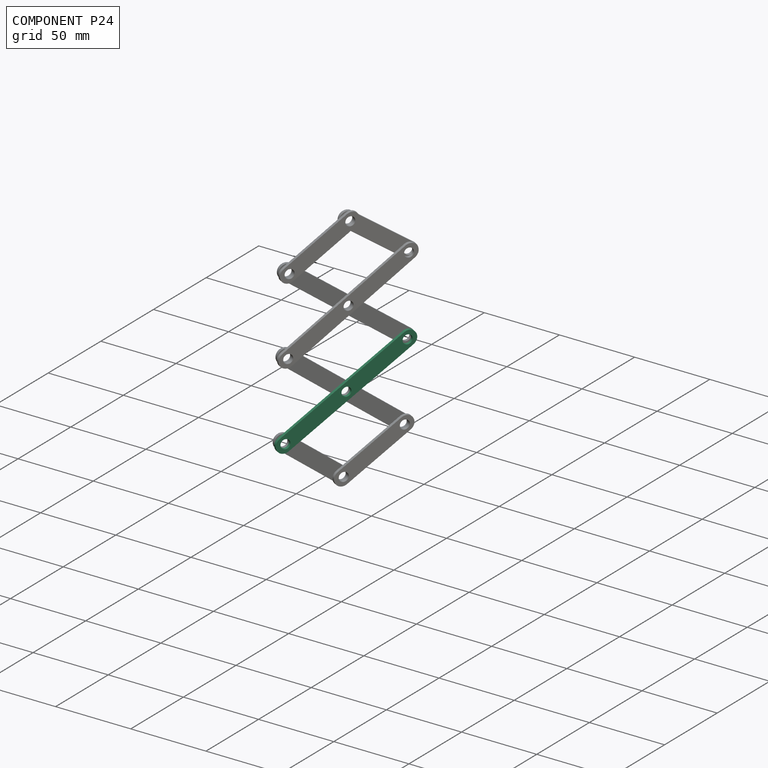
[diagram: component P24 — assembled]
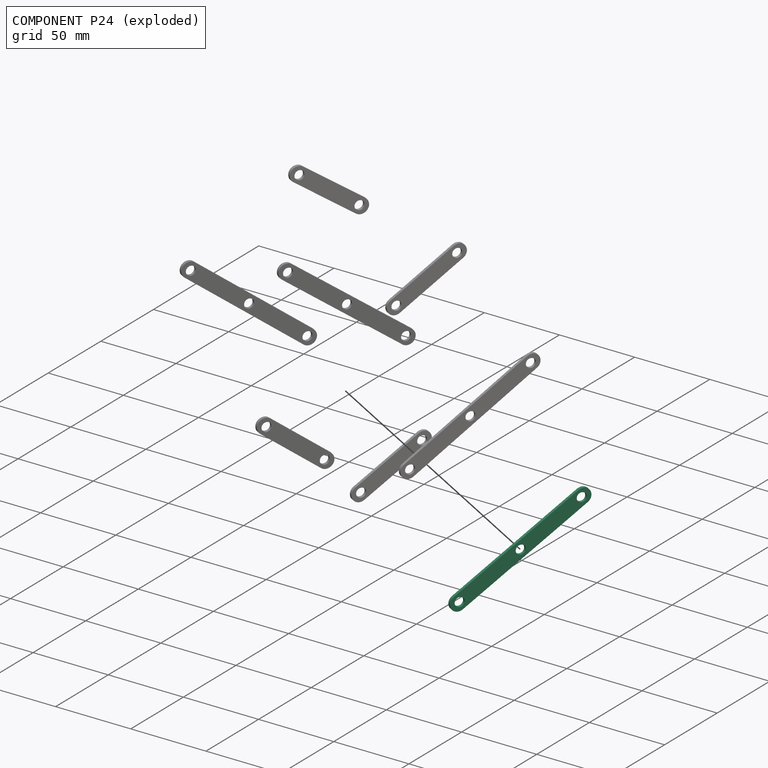
[diagram: component P24 — exploded]
COMPONENT P24 — recipe-attached (CADFS 00656249, mesh-verified: the recipe's output STEP matches this component's geometry to below the mesh-comparison resolution (tessellation chordal tolerance ~0.151 mm)).
Held by: REVOLUTE mate "Revolute 1" to P15; REVOLUTE mate "Revolute 7" to P12; REVOLUTE mate "Revolute 2" to P7; REVOLUTE mate "Revolute 1" to P15; REVOLUTE mate "Revolute 2" to P7; REVOLUTE mate "Revolute 7" to P12.
Construction recipe (FeatureScript — the CAD program that rebuilds this solid; sketch coordinates are in the units given by the * unit suffixes, e.g. mm):

FeatureScript 1511;
import(path : "onshape/std/geometry.fs", version : "1511.0");
import(path : "onshape/std/common.fs", version : "1511.0");
const mm = millimeter;
const VERTEX = EntityType.VERTEX;
const EDGE = EntityType.EDGE;
const FACE = EntityType.FACE;
const BODY = EntityType.BODY;
function v(x, y){return vector(x, y);}
function OD(order){return orderDisambiguation(order);}
function OSD(set){return originalSetDisambiguation(set);}
function TD(topology){return topologyDisambiguation(topology);}
function TDD(query){return trueDependencyDisambiguation(query);}
function sQuery(a, b, c) {return sketchEntityQuery(a, b, c);}

annotation { "Feature Type Name" : "Feature", "Feature Type Description" : "" }
export const myFeature = defineFeature(function(context is Context, id is Id, definition is map)
    precondition{}
    {
        {
            var Q0;
            Q0=qCreatedBy(makeId("Front.planeOp"),FACE);
            var sketch = newSketch(context, id + "F0", { "sketchPlane" : qUnion([Q0])});
            skLineSegment(sketch, "E0.bottom", {"start": v(-50, 5) * mm, "end": v(50, 5) * mm});
            skLineSegment(sketch, "E0.top", {"start": v(-50, -5) * mm, "end": v(50, -5) * mm});
            skLineSegment(sketch, "E0.left", {"start": v(-50, 5) * mm, "end": v(-50, -5) * mm});
            skLineSegment(sketch, "E0.right", {"start": v(50, 5) * mm, "end": v(50, -5) * mm});
            skCircle(sketch, "E1", {"center": v(0, 0) * mm, "radius": 3 * mm});
            skCircle(sketch, "E2", {"center": v(-44, 0) * mm, "radius": 3 * mm});
            skPoint(sketch, "E2.centerSnap0", {"position": v(-50, 0) * mm});
            skCircle(sketch, "E3", {"center": v(44, 0) * mm, "radius": 3 * mm});
            skSolve(sketch);
        }
        {
            var Q0;
            Q0 = qSketchRegion(id + "F0", true);
            extrude(context, id + "F1", {"entities" : qUnion([Q0]), "depth" : 2 * mm, "offsetDistance" : 25 * mm});
        }
        {
            var Q0;
            Q0=makeQuery(id+"F1.opExtrude","SWEPT_EDGE",EDGE,{"disambiguationData":[OSD([sQuery(id+"F0.wireOp",EDGE,"E0.bottom"),sQuery(id+"F0.wireOp",EDGE,"E0.left")])]});
            var Q1;
            Q1=makeQuery(id+"F1.opExtrude","SWEPT_EDGE",EDGE,{"disambiguationData":[OSD([sQuery(id+"F0.wireOp",EDGE,"E0.top"),sQuery(id+"F0.wireOp",EDGE,"E0.left")])]});
            var Q2;
            Q2=makeQuery(id+"F1.opExtrude","SWEPT_EDGE",EDGE,{"disambiguationData":[OSD([sQuery(id+"F0.wireOp",EDGE,"E0.bottom"),sQuery(id+"F0.wireOp",EDGE,"E0.right")])]});
            var Q3;
            Q3=makeQuery(id+"F1.opExtrude","SWEPT_EDGE",EDGE,{"disambiguationData":[OSD([sQuery(id+"F0.wireOp",EDGE,"E0.top"),sQuery(id+"F0.wireOp",EDGE,"E0.right")])]});
            fillet(context, id + "F2", {"entities" : qUnion([Q0, Q1, Q2, Q3]), "radius" : 5 * mm, "tangentPropagation" : true, "allowEdgeOverflow" : false});
        }
    });
